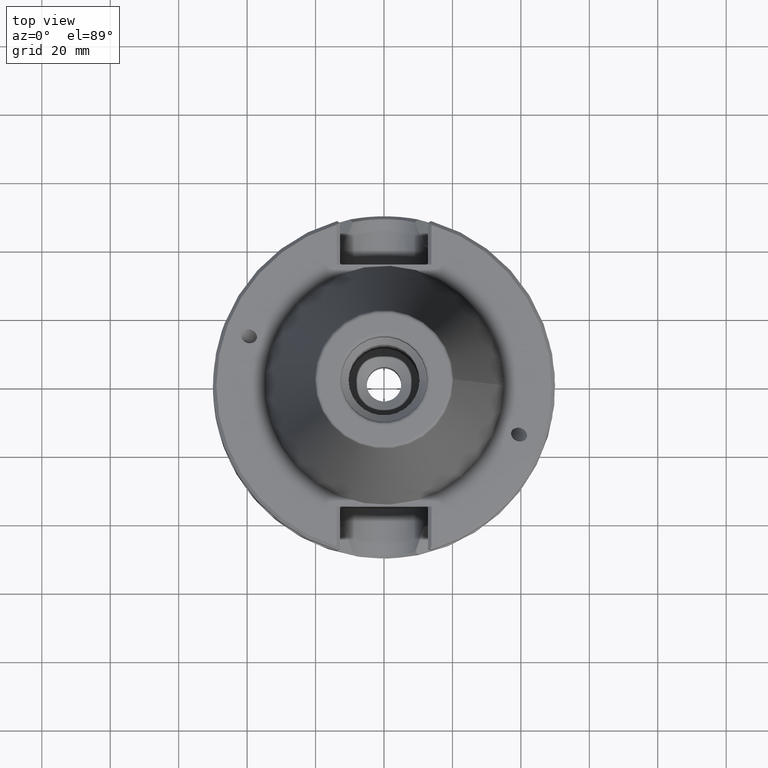
[diagram: clean part render]
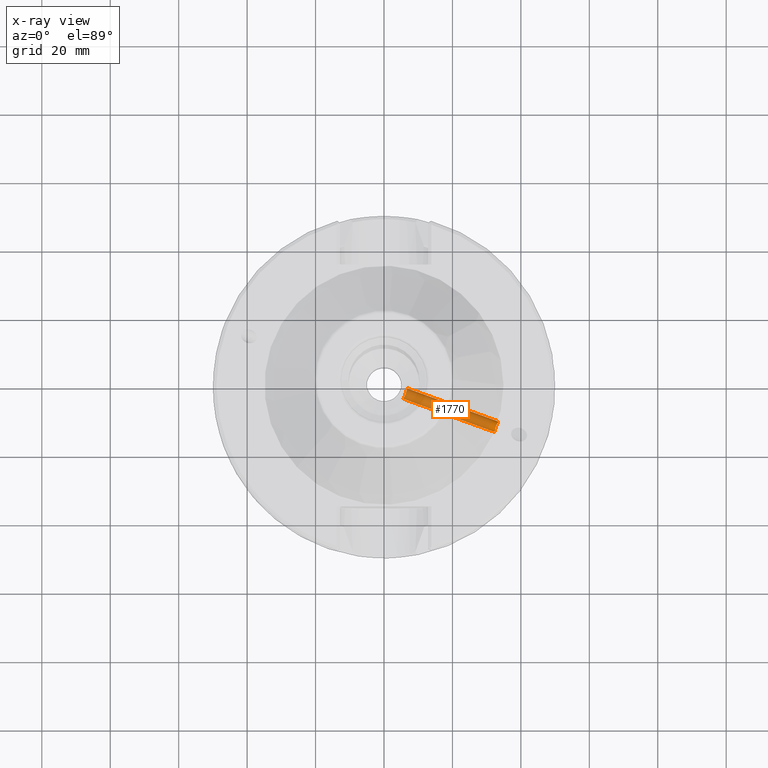
[diagram: x-ray — body ghosted, one internal face saturated and labeled with its STEP entity id]
A machine part, top view, then the same camera in x-ray: the body is ghosted and one INTERNAL B-rep face — a face not visible from any outside direction — is saturated and labeled: STEP entity #1770.
In plain terms, the highlighted cylindrical surface (bore or boss wall) has radius 1.621 mm, axis along (-0.9397, 0.342, -0).
Its self-contained STEP definition (entity closure, byte-faithful):
#192=B_SPLINE_CURVE_WITH_KNOTS('',3,(#2348,#2349,#2350,#2351,#2352,#2353,
#2354,#2355,#2356,#2357,#2358),.UNSPECIFIED.,.T.,.F.,(1,1,1,1,1,1,1,1,1,
1,1,1,1,1,1),(-0.00381443179031507,-0.00254295452687671,-0.00127147726343836,
0.,0.00127147726343836,0.00254295452687671,0.00381443179031507,0.00508590905375343,
0.00635738631719179,0.00762886358063014,0.0089003408440685,0.0101718181075069,
0.0114432953709452,0.0127147726343836,0.0139862498978219),.UNSPECIFIED.);
#193=B_SPLINE_CURVE_WITH_KNOTS('',3,(#2360,#2361,#2362,#2363,#2364,#2365,
#2366,#2367,#2368,#2369,#2370,#2371,#2372,#2373,#2374,#2375,#2376,#2377,
#2378,#2379,#2380,#2381),.UNSPECIFIED.,.T.,.F.,(1,1,1,1,1,1,1,1,1,1,1,1,
1,1,1,1,1,1,1,1,1,1,1,1,1,1),(-0.00226342103578315,-0.00150894735718876,
-0.000754473678594381,1.73472347597681E-18,0.000377236839297193,0.000754473678594385,
0.00150894735718877,0.00226342103578315,0.00301789471437754,0.00377236839297192,
0.0045268420715663,0.00490407891086349,0.00528131575016069,0.00603578942875507,
0.00679026310734945,0.00754473678594384,0.00829921046453822,0.00867644730383541,
0.0090536841431326,0.00980815782172699,0.0105626315003214,0.0113171051789158,
0.0120715788575101,0.0124488156968073,0.0128260525361045,0.0135805262146989),
 .UNSPECIFIED.);
#242=ORIENTED_EDGE('',*,*,#572,.T.);
#243=ORIENTED_EDGE('',*,*,#573,.F.);
#572=EDGE_CURVE('',#737,#737,#192,.T.);
#573=EDGE_CURVE('',#738,#738,#193,.T.);
#737=VERTEX_POINT('',#2359);
#738=VERTEX_POINT('',#2382);
#915=EDGE_LOOP('',(#242));
#916=EDGE_LOOP('',(#243));
#1041=FACE_BOUND('',#915,.T.);
#1042=FACE_BOUND('',#916,.T.);
#1168=CYLINDRICAL_SURFACE('',#1859,1.621);
#1770=ADVANCED_FACE('',(#1041,#1042),#1168,.F.);
#1859=AXIS2_PLACEMENT_3D('',#2347,#2007,#2008);
#2007=DIRECTION('',(-0.939692620785908,0.342020143325669,-1.23014643187723E-16));
#2008=DIRECTION('',(-0.342020143325669,-0.939692620785908,0.));
#2347=CARTESIAN_POINT('',(47.1255849324133,-17.1523101877823,-11.5));
#2348=CARTESIAN_POINT('',(5.81757086093245,-3.4681259337568,-12.7713598333421));
#2349=CARTESIAN_POINT('',(5.49560628427729,-3.91237377592574,-11.4997549391916));
#2350=CARTESIAN_POINT('',(5.81736056516347,-3.46828912136119,-10.2296204098915));
#2351=CARTESIAN_POINT('',(6.38800898850241,-2.3269669990671,-9.70363389406121));
#2352=CARTESIAN_POINT('',(6.68610319785887,-1.08129363230926,-10.2298458625659));
#2353=CARTESIAN_POINT('',(6.72452005497367,-0.536334497146397,-11.4992606545563));
#2354=CARTESIAN_POINT('',(6.68614887780833,-1.08037857238595,-12.7689911765231));
#2355=CARTESIAN_POINT('',(6.38892089955771,-2.32455534380603,-13.296411870478));
#2356=CARTESIAN_POINT('',(5.81757086093245,-3.4681259337568,-12.7713598333421));
#2357=CARTESIAN_POINT('',(5.49560628427729,-3.91237377592574,-11.4997549391916));
#2358=CARTESIAN_POINT('',(5.81736056516347,-3.46828912136119,-10.2296204098915));
#2359=CARTESIAN_POINT('',(5.60289276053418,-3.76431835980349,-11.5));
#2360=CARTESIAN_POINT('',(31.6135590203939,-13.155173195465,-12.048098924441));
#2361=CARTESIAN_POINT('',(32.0232653803204,-13.4006902284804,-11.6223408605918));
#2362=CARTESIAN_POINT('',(32.2647220148282,-13.4474245083911,-11.1701666660466));
#2363=CARTESIAN_POINT('',(32.390828399958,-13.3245668772187,-10.6867311133874));
#2364=CARTESIAN_POINT('',(32.4351616943961,-12.913968231289,-10.1824313443796));
#2365=CARTESIAN_POINT('',(32.5791082024052,-12.2247894270942,-9.85506397483893));
#2366=CARTESIAN_POINT('',(32.8520139123457,-11.4959855940364,-9.87658296211005));
#2367=CARTESIAN_POINT('',(33.1854884009498,-10.8976915325822,-10.2389255007089));
#2368=CARTESIAN_POINT('',(33.3975193426314,-10.5757871354297,-10.7662887245498));
#2369=CARTESIAN_POINT('',(33.3352831262557,-10.4140557728844,-11.2529176001908));
#2370=CARTESIAN_POINT('',(33.0845510599428,-10.3053398645096,-11.6874725763953));
#2371=CARTESIAN_POINT('',(32.6034562433992,-10.2384267229926,-12.0990632712976));
#2372=CARTESIAN_POINT('',(31.9670318583923,-10.2532076309796,-12.5078866171158));
#2373=CARTESIAN_POINT('',(31.314183195104,-10.3970139479489,-12.8573427498226));
#2374=CARTESIAN_POINT('',(30.784915609353,-10.710143578387,-13.0868631854551));
#2375=CARTESIAN_POINT('',(30.5297132925023,-11.1633400495041,-13.1361564136616));
#2376=CARTESIAN_POINT('',(30.4848386837655,-11.6744687321688,-13.0589430296708));
#2377=CARTESIAN_POINT('',(30.7139730252574,-12.2329493304156,-12.8188776039905));
#2378=CARTESIAN_POINT('',(31.1320124937053,-12.7481165484722,-12.463348774435));
#2379=CARTESIAN_POINT('',(31.6135590203939,-13.155173195465,-12.048098924441));
#2380=CARTESIAN_POINT('',(32.0232653803204,-13.4006902284804,-11.6223408605918));
#2381=CARTESIAN_POINT('',(32.2647220148282,-13.4474245083911,-11.1701666660466));
#2382=CARTESIAN_POINT('',(32.0764371678279,-13.3999005195829,-11.5));